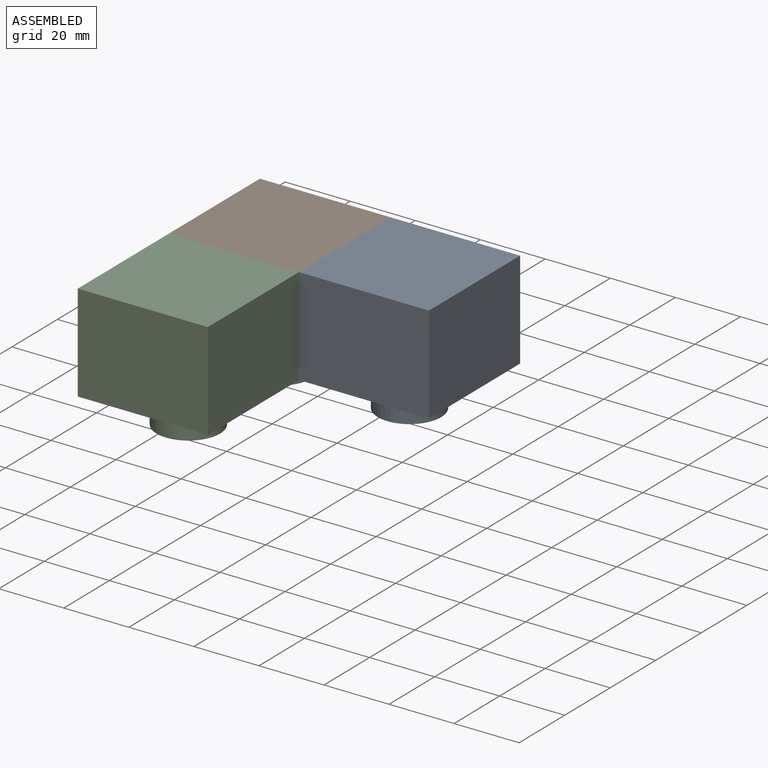
[diagram: assembled view]
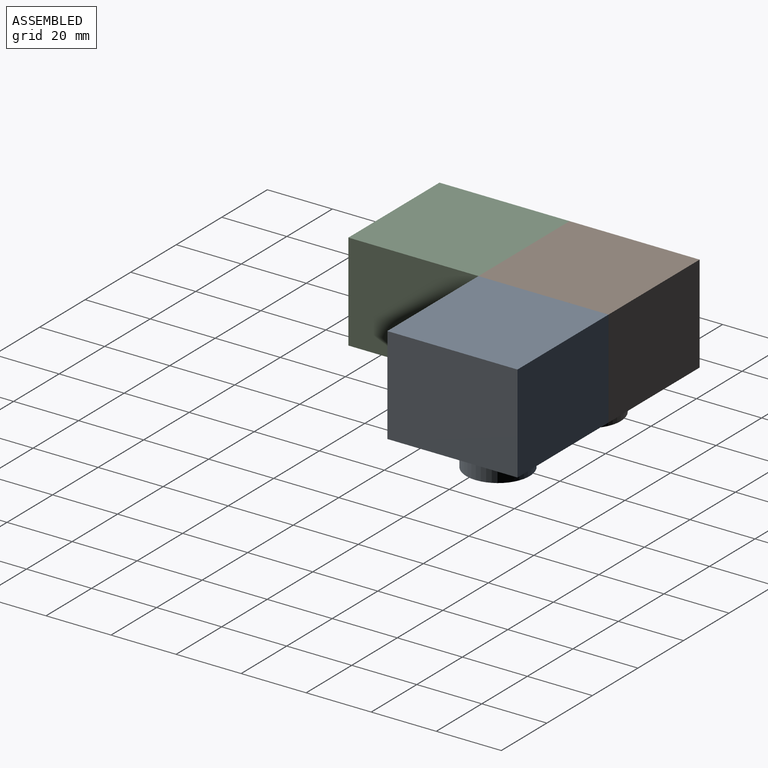
[diagram: assembled view, second angle]
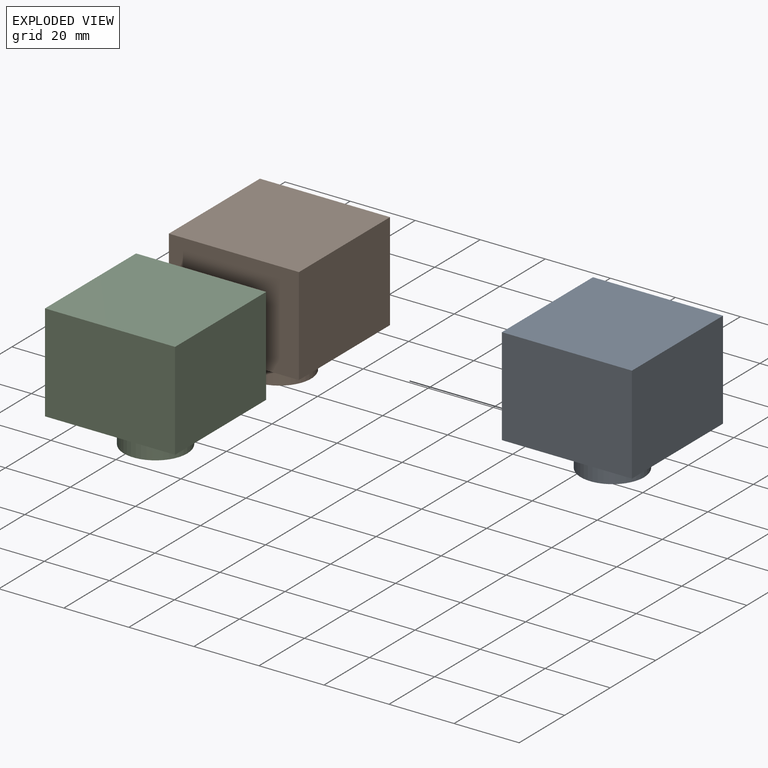
[diagram: exploded view]
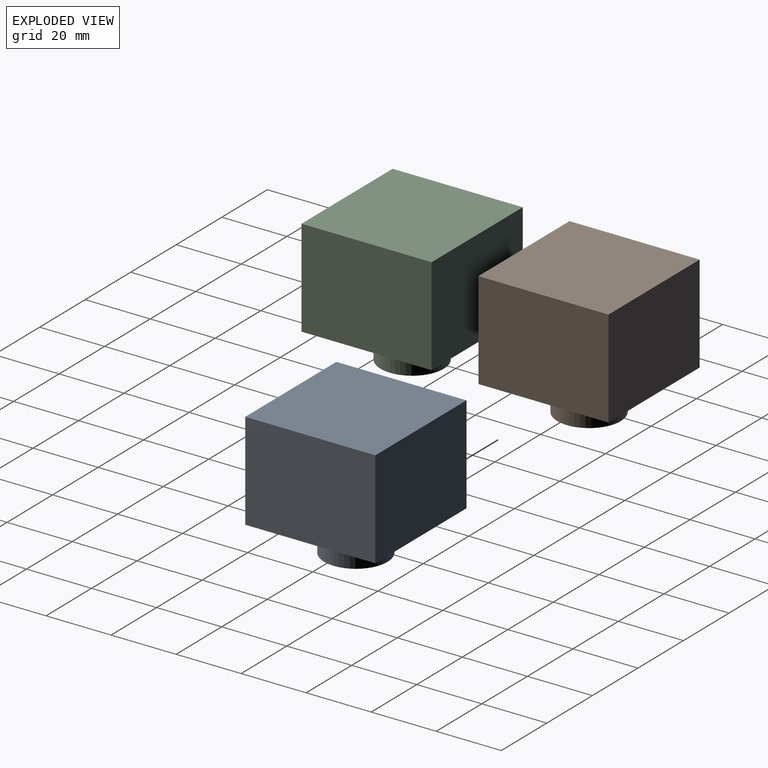
[diagram: exploded view, second angle]
ASSEMBLY  parts=3 mates=2
PART A: 8 faces, bbox 40x40x40 mm
  f0: plane 40x30mm, normal (0,-1,0), area 1200mm2, adj f1,f3,f4,f5
  f1: plane 40x30mm, normal (1,0,0), area 1200mm2, adj f0,f2,f4,f5
  f2: plane 40x30mm, normal (0,1,0), area 1200mm2, adj f1,f3,f4,f5
  f3: plane 40x30mm, normal (-1,0,0), area 1200mm2, adj f0,f2,f4,f5
  f4: plane 40x40mm, normal (0,0,1), area 1600mm2, adj f0,f1,f2,f3
  f5: plane 40x40mm, normal (0,0,-1), area 1301.6mm2, adj f0,f1,f2,f3,f6
  f6: cylinder r=9.75mm len=19.49mm, axis (0,0,1), area 612.4mm2, adj f5,f7
  f7: plane 19.49x19.49mm, normal (0,0,-1), area 298.4mm2, adj f6
PART B: same geometry as A
PART C: same geometry as A
PLACE A t=(-54.9,104.53,69.26)mm
PLACE B rot(axis=(0,0,-1),90deg) t=(-94.9,104.53,69.26)mm
PLACE C t=(-94.9,64.53,69.26)mm
MATE fastened B.f1 <-> C.f2  axis (0,-1,0) through (-94.9,84.53,84.26)mm
MATE fastened A.f3 <-> B.f2  axis (-1,0,0) through (-74.9,104.53,84.26)mm
